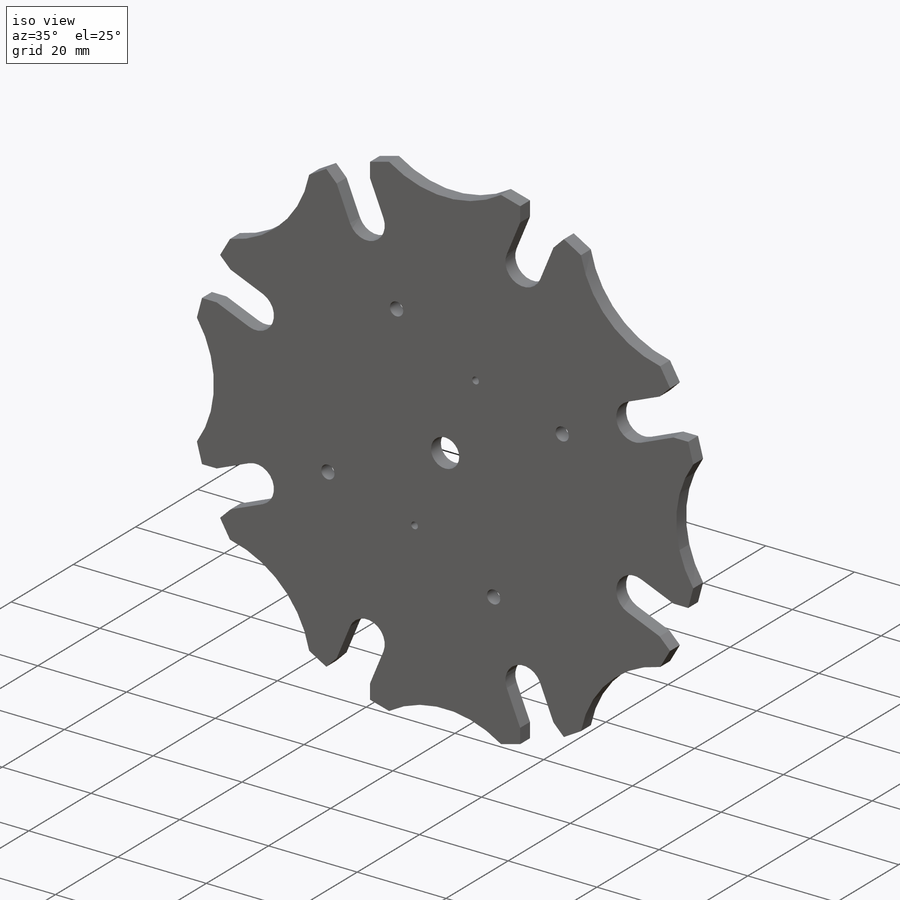
[diagram: iso view]
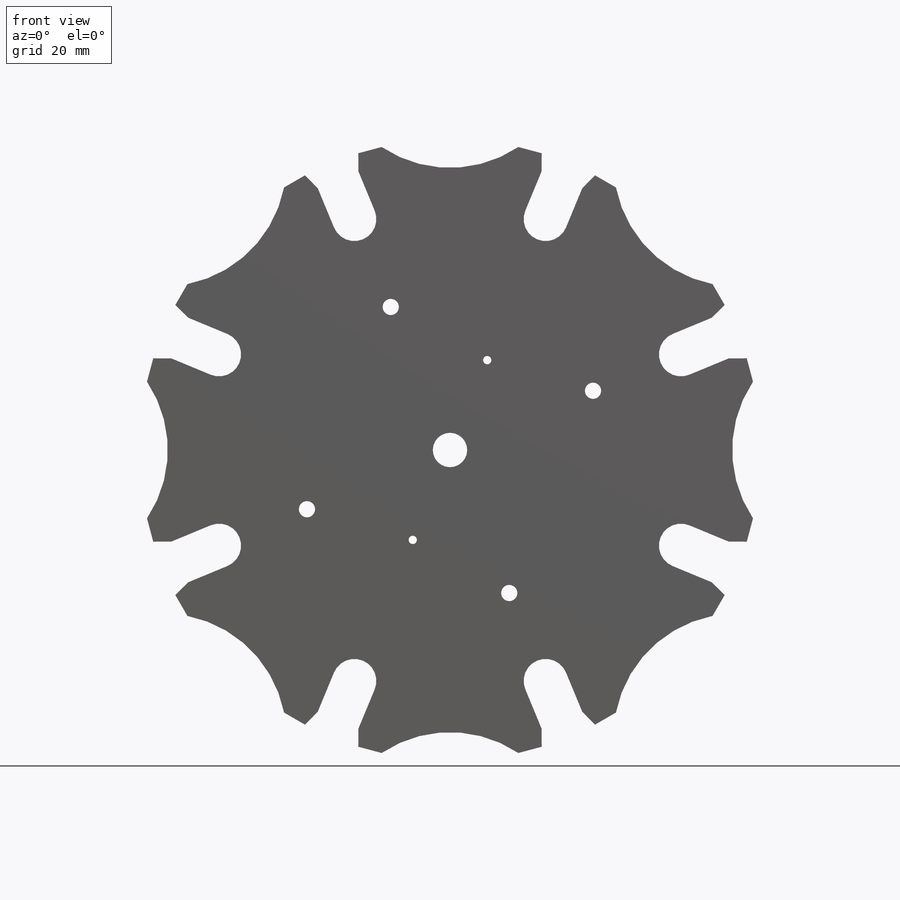
[diagram: front view]
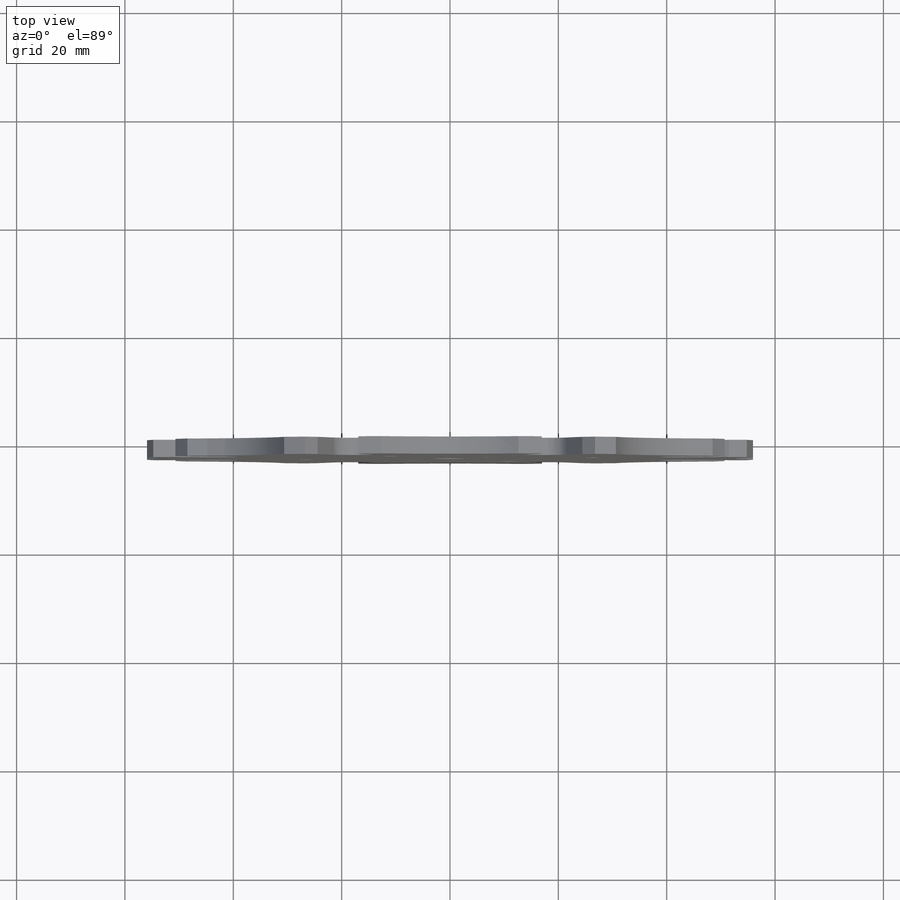
[diagram: top view]
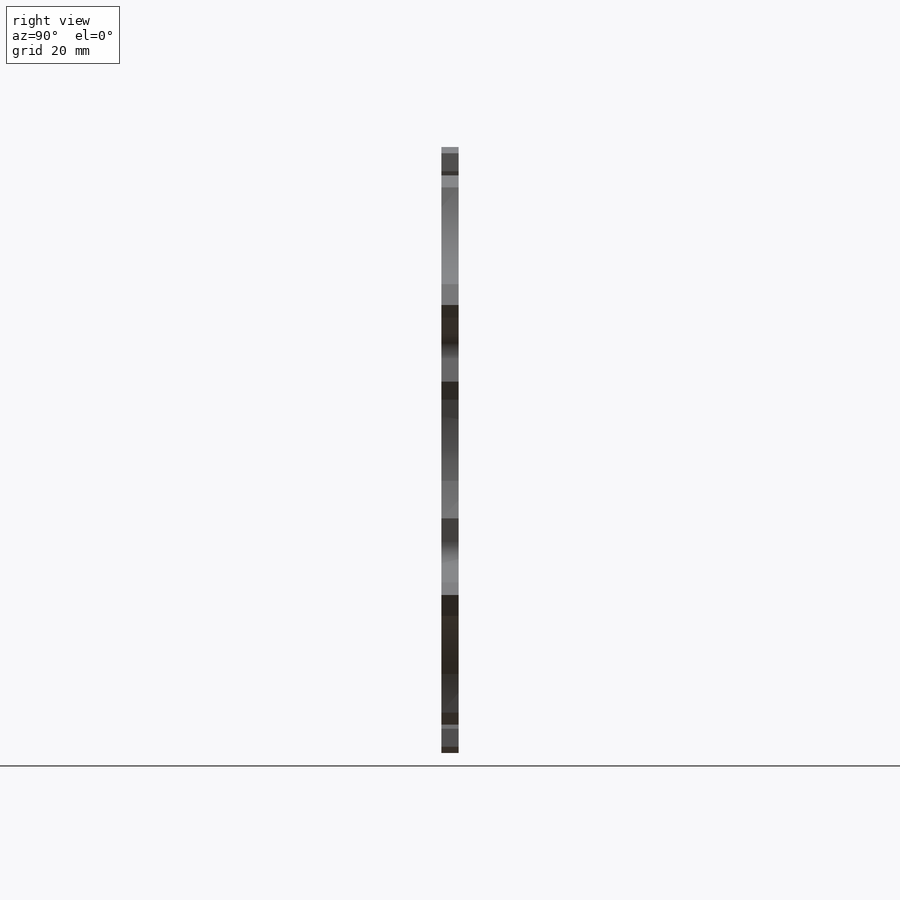
[diagram: right view]
SOLIDWORKS PART (.sldprt)
format: sldprt  version: not decoded by parser v0  size: 620,032 bytes
history: native  units: mm
features: sketch x5, cut_extrude x4, pattern_circular x2, material x1, extrude x1, chamfer x1 (+12 scaffold rows collapsed)
feature tree (26):
  scaffold x12  (default folders/planes/origin — collapsed)
  material  "Delrin 2700 NC010, Low Viscosity Acetal Copolymer (SS)"
  sketch  "Sketch1"  dims[c1.D1=0.0mm c1.D4=6.35mm c1.D5=0.0mm c2.D4=0.0mm c2.D2=~61.791352mm c3.D2=45.0deg c3.D3=0.0mm c3.D6=~81.61155mm c4.D6=45.0deg c4.D2=~63.797672mm c5.D2=45.0deg]
  extrude  "Boss-Extrude1"  Depth=3.175mm
  sketch  "Sketch2"  dims[Slot_Diameter=0.0mm D1=~16.424721mm]
  cut_extrude  "Cut-Extrude1"  [1 undecoded]
  pattern_circular  "CirPattern1"  Count=8 Angle=45deg
  sketch  "Sketch3"  dims[D1=0.0mm]
  cut_extrude  "Cut-Extrude2"  [1 undecoded]
  sketch  "Sketch4"  dims[D1=~35.921024mm D2=1.524mm]
  cut_extrude  "Cut-Extrude3"  [1 undecoded]
  chamfer  "Chamfer1"  Distance=1.27mm
  sketch  "Sketch5"  dims[D1=57.15mm D2=2.9972mm]
  cut_extrude  "Cut-Extrude4"  [1 undecoded]
  pattern_circular  "CirPattern2"  Count=4 Angle=360deg
decode coverage: 9 of 13 modeling features carry decoded parameters
note: ~ marks probable driven/reference dimensions
note: 4 parameter values undecoded
summary: no parameter record found for 4 features
note: suppression state not decoded; provenance and decode notes live in map.json
